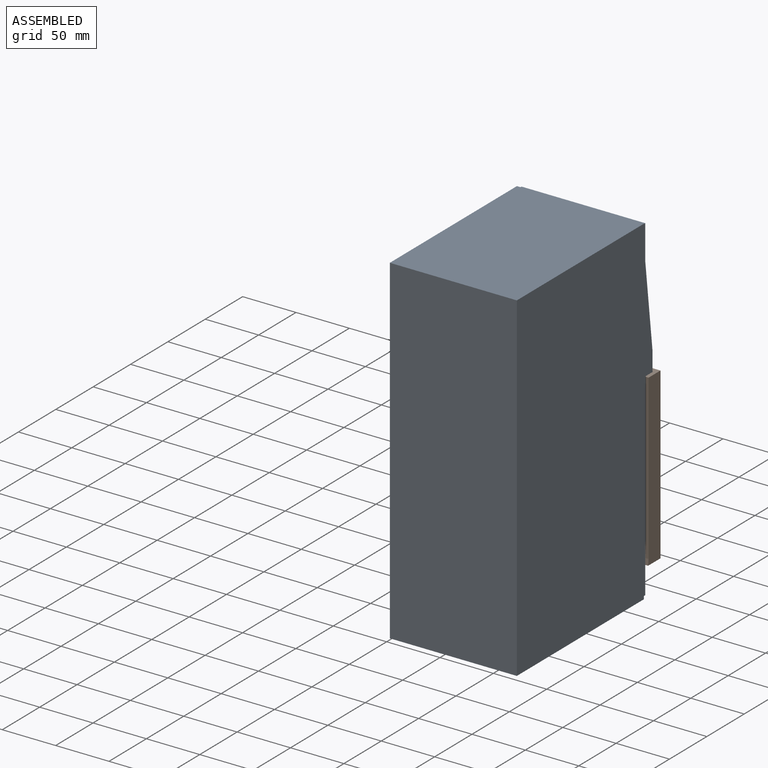
[diagram: assembled view]
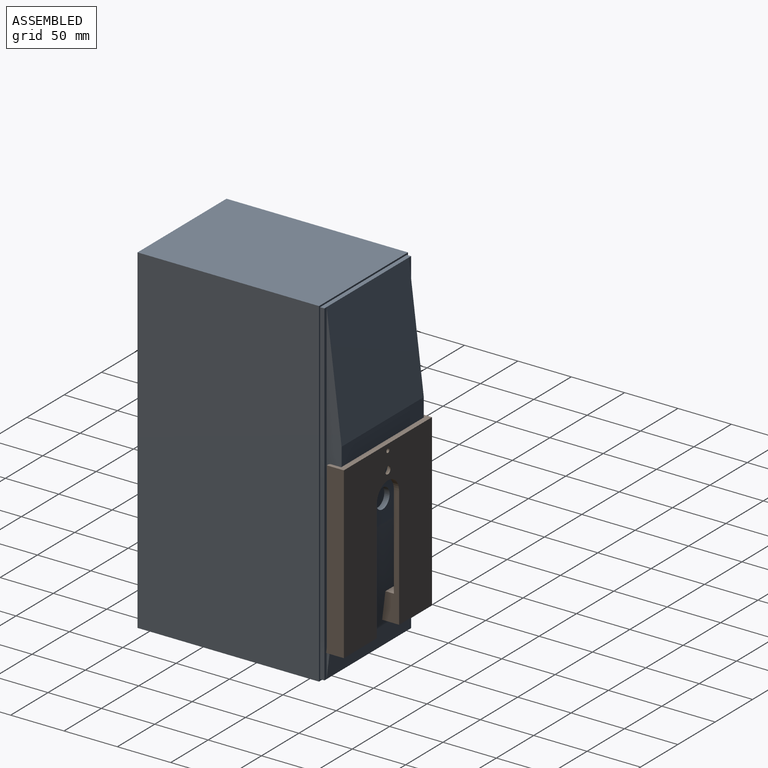
[diagram: assembled view, second angle]
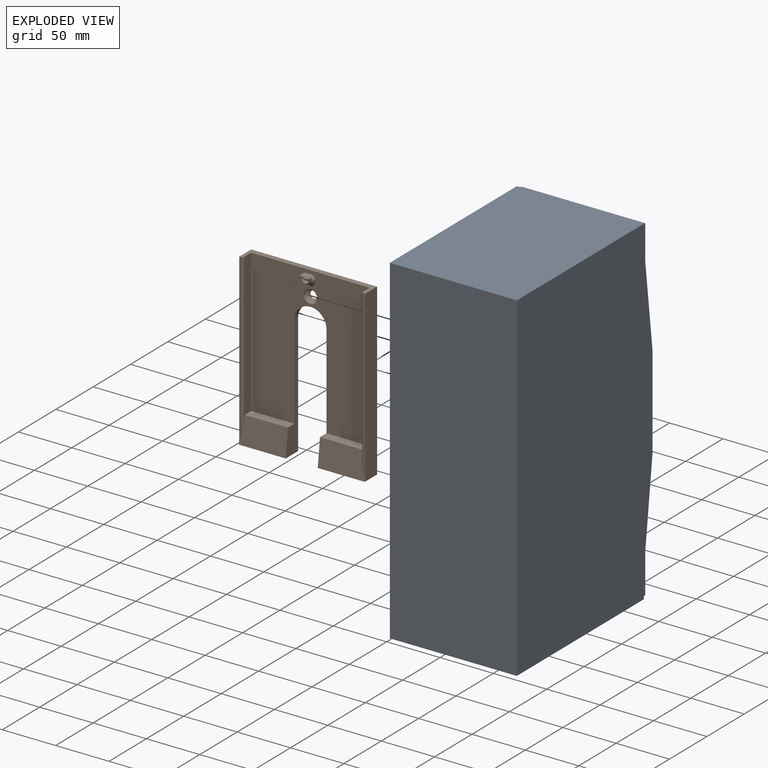
[diagram: exploded view]
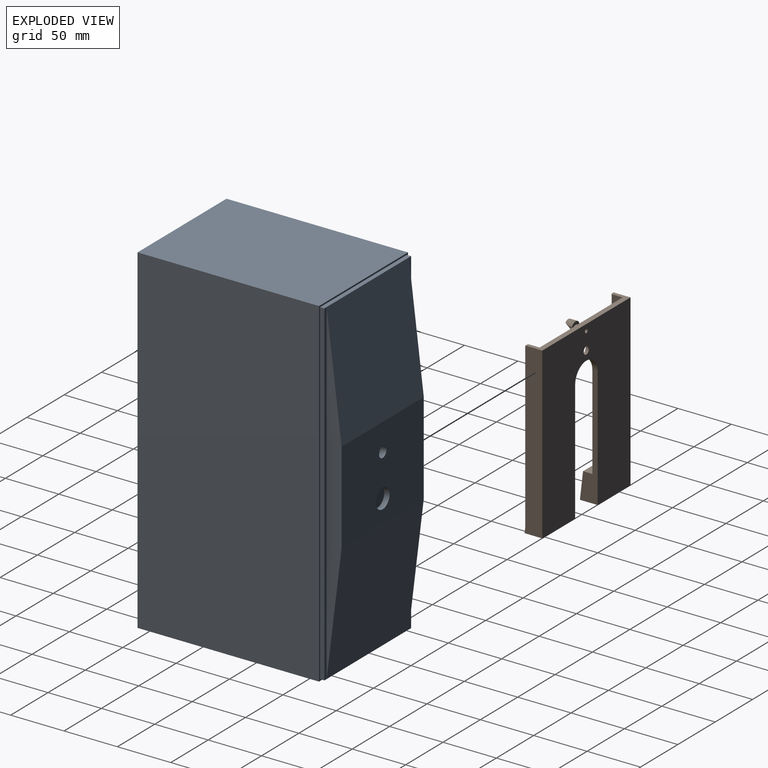
[diagram: exploded view, second angle]
ASSEMBLY  parts=2 mates=3
PART A: 23 faces, bbox 119x188x318 mm
  f0: plane 315x3mm, normal (0,1,0), area 945mm2, adj f8,f9,f10,f15
  f1: plane 318x119mm, normal (0,-1,0), area 37842mm2, adj f2,f4,f5,f6
  f2: plane 318x170mm, normal (1,0,0), area 54060mm2, adj f1,f3,f5,f6
  f3: plane 318x119mm, normal (0,1,0), area 1302mm2, adj f2,f4,f5,f6,f7,f8,f9,f10
  f4: plane 318x170mm, normal (-1,0,0), area 54060mm2, adj f1,f3,f5,f6
  f5: plane 170x119mm, normal (0,0,1), area 20230mm2, adj f1,f2,f3,f4
  f6: plane 170x119mm, normal (0,0,-1), area 20230mm2, adj f1,f2,f3,f4
  f7: plane 315x4mm, normal (-1,0,0), area 1260mm2, adj f3,f8,f10,f11
  f8: plane 116x4mm, normal (0,0,1), area 464mm2, adj f0,f3,f7,f9,f11,f12
  f9: plane 315x4mm, normal (1,0,0), area 1260mm2, adj f0,f3,f8,f10
  f10: plane 116x4mm, normal (0,0,-1), area 464mm2, adj f0,f3,f7,f9,f11,f13
  f11: plane 315x3mm, normal (0,1,0), area 945mm2, adj f7,f8,f10,f16
  f12: plane 114.5x110mm, normal (0,0.99,0.12), area 12688.8mm2, adj f8,f14,f15,f16
  f13: plane 114.5x110mm, normal (0,0.99,-0.12), area 12688.8mm2, adj f10,f14,f15,f16
  f14: plane 110x86mm, normal (0,1,0), area 9112.7mm2, adj f12,f13,f15,f16,f17,f19
  f15: plane 315x14mm, normal (1,0,0), area 2807mm2, adj f0,f12,f13,f14
  f16: plane 315x14mm, normal (-1,0,0), area 2807mm2, adj f11,f12,f13,f14
  f17: cylinder r=9.25mm len=18.5mm, axis (0,1,0), area 290.6mm2, adj f14,f18
  f18: plane 18.5x18.5mm, normal (0,1,0), area 268.8mm2, adj f17
  f19: cylinder r=5mm len=10mm, axis (0,1,0), area 157.1mm2, adj f14,f22
  f20: cylinder r=12.5mm len=25mm, axis (0,1,0), area 628.3mm2, adj f21,f22
  f21: plane 25x25mm, normal (0,1,0), area 490.9mm2, adj f20
  f22: plane 25x25mm, normal (0,-1,0), area 412.3mm2, adj f19,f20
PART B: 36 faces, bbox 118.7x17.7x162.5 mm
  f0: bspline ~12.64x9.74mm, area 52.1mm2, adj f2,f3,f4,f12,f13,f17,f35
  f1: plane 7.52x2.55mm, normal (0,-1,0), area 9.7mm2, adj f3,f4,f12,f35
  f2: plane 9.87x6.18mm, normal (0,1,0), area 29.2mm2, adj f0,f11,f35
  f3: bspline ~3.23x2.8mm, area 1.4mm2, adj f0,f1,f12,f35
  f4: bspline ~1.49x1.39mm, area 1.4mm2, adj f0,f1,f12,f35
  f5: plane 134.66x111.66mm, normal (0,-1,0), area 11683.1mm2, adj f6,f11,f14,f17,f18,f19,f20,f21
  f6: plane 145x10mm, normal (-1,0,0), area 1347.1mm2, adj f5,f8,f14,f28,f29
  f7: plane 153.5x2.5mm, normal (0,-1,0), area 383.7mm2, adj f8,f14,f15,f29
  f8: plane 153.5x1mm, normal (-0.71,-0.71,0), area 211.1mm2, adj f6,f7,f14,f29
  f9: plane 159x118mm, normal (0,1,0), area 14968.1mm2, adj f10,f14,f15,f16,f20,f21,f22,f26
  f10: cylinder r=1.95mm len=10mm, axis (0,1,0), area 122.5mm2, adj f9,f13
  f11: cylinder r=5mm len=9.29mm, axis (0,-1,0), area 60.8mm2, adj f2,f5,f18,f19
  f12: cylinder r=4.1mm len=8.2mm, axis (0,-1,0), area 47.4mm2, adj f0,f1,f3,f4,f13
  f13: cone r=1.95mm half-angle=45deg, axis (0,-1,0), area 49.4mm2, adj f0,f10,f12
  f14: plane 118x15.9mm, normal (0,0,1), area 654.2mm2, adj f5,f6,f7,f8,f9,f15,f16,f23
  f15: plane 159x16.55mm, normal (1,0,0), area 2529.9mm2, adj f7,f9,f14,f26,f29
  f16: plane 159x16.55mm, normal (-1,0,0), area 2529.9mm2, adj f9,f14,f24,f27,f30
  f17: bspline ~9.29x6.56mm, area 70mm2, adj f0,f5,f18,f19
  f18: plane 5.1x3.31mm, normal (1,0,0), area 8.4mm2, adj f5,f11,f17
  f19: plane 5.1x3.31mm, normal (-1,0,0), area 8.4mm2, adj f5,f11,f17
  f20: plane 113x16.55mm, normal (1,0,0), area 808.1mm2, adj f5,f9,f21,f27,f30,f31
  f21: cylinder r=15mm len=30mm, axis (0,1,0), area 230.9mm2, adj f5,f9,f20,f22
  f22: plane 113x16.55mm, normal (-1,0,0), area 808.1mm2, adj f5,f9,f21,f26,f28,f29
  f23: plane 145x10mm, normal (1,0,0), area 1347.1mm2, adj f5,f14,f25,f30,f31
  f24: plane 153.5x2.5mm, normal (0,-1,0), area 383.7mm2, adj f14,f16,f25,f30
  f25: plane 153.5x1mm, normal (0.71,-0.71,0), area 211.1mm2, adj f14,f23,f24,f30
  f26: plane 44x16.55mm, normal (0,0,-1), area 728.1mm2, adj f9,f15,f22,f29
  f27: plane 44x16.55mm, normal (0,0,-1), area 728.1mm2, adj f9,f16,f20,f30
  f28: plane 40.5x8.71mm, normal (0,0,1), area 352.6mm2, adj f5,f6,f22,f29
  f29: plane 44x25mm, normal (0,-0.99,0.12), area 1043.2mm2, adj f6,f7,f8,f15,f22,f26,f28
  f30: plane 44x25mm, normal (0,-0.99,0.12), area 1043.2mm2, adj f16,f20,f23,f24,f25,f27,f31
  f31: plane 40.5x8.71mm, normal (0,0,1), area 352.6mm2, adj f5,f20,f23,f30
  f32: cone r=6.25mm half-angle=45deg, axis (0,-1,0), area 119.1mm2, adj f33,f34
  f33: cylinder r=6.25mm len=12.5mm, axis (0,1,0), area 47.1mm2, adj f5,f32
  f34: cylinder r=3.5mm len=7mm, axis (0,1,0), area 20.9mm2, adj f9,f32
  f35: cylinder r=5.4mm len=9.8mm, axis (0,-1,0), area 77.1mm2, adj f0,f1,f2,f3,f4
PLACE A t=(15.21,31.19,-159.16)mm fixed
PLACE B t=(15.21,-59.85,-106.01)mm
MATE parallel B.f16 <-> A.f4  axis (-1,0,0) through (-43.79,131.13,-53.92)mm
MATE cylindrical A.f20 <-> B.f11  axis (0,1,0) through (15.21,134.19,17.34)mm
MATE planar B.f5 <-> A.f14  axis (0,-1,0) through (15.21,134.19,-37.84)mm
